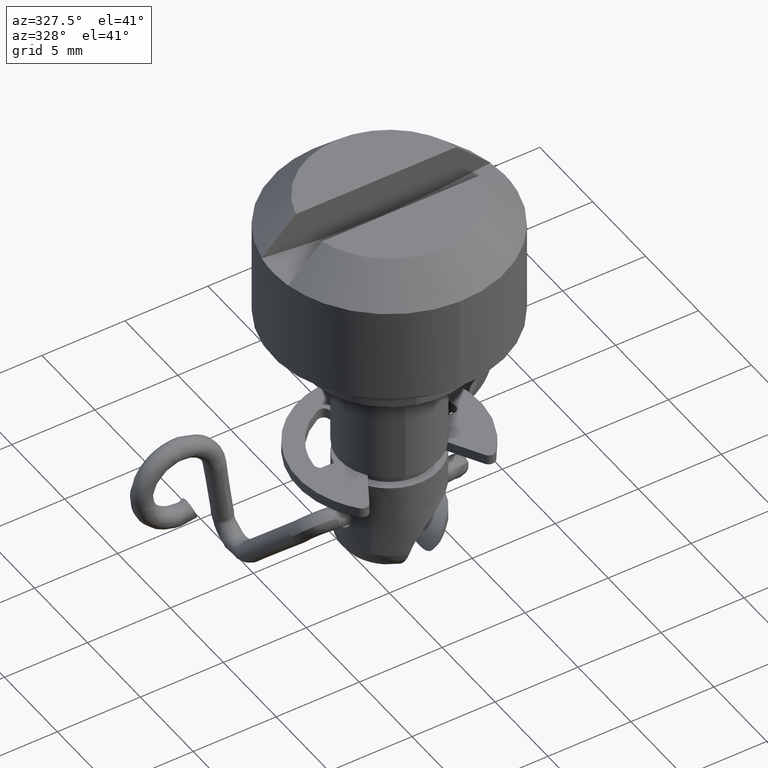
[diagram: clean part render]
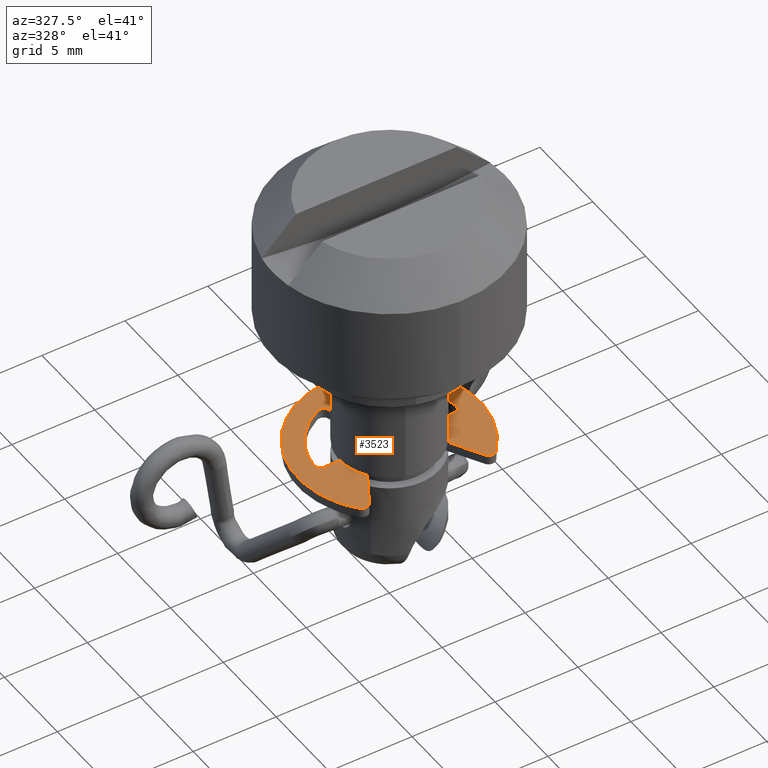
[diagram: same view with one face highlighted and labeled with its STEP entity id]
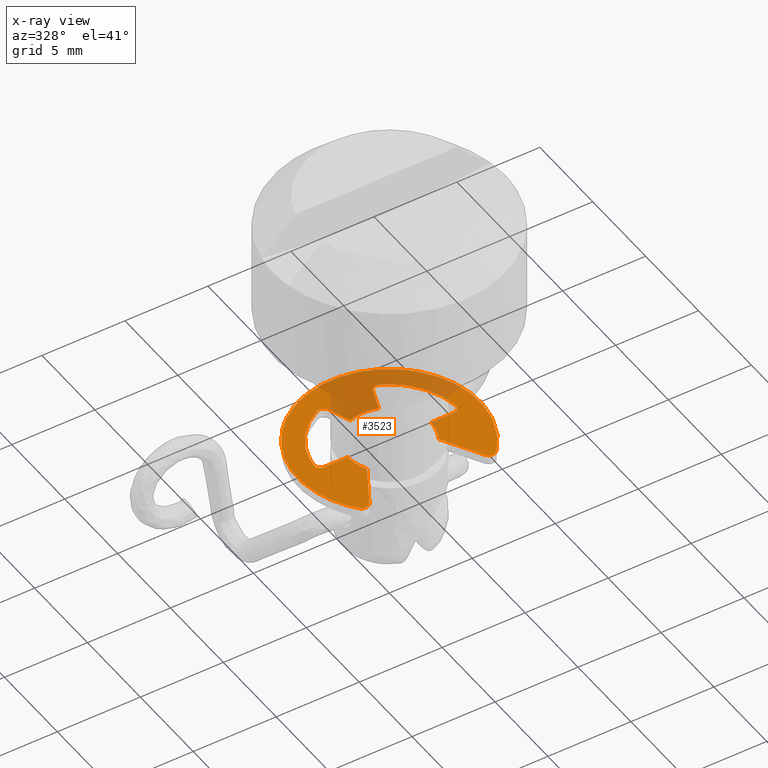
[diagram: x-ray of the same camera — body ghosted, the highlighted face saturated]
A machine part, auxiliary view. The second image highlights one B-rep face of the part: STEP entity #3523.
The next image is the same camera in x-ray: the body ghosted, the highlighted face saturated — about 32% of this face is hidden behind the body in this view.
In plain terms, the highlighted face is a freeform B-spline surface patch.
Its self-contained STEP definition (entity closure, byte-faithful):
#3286=CARTESIAN_POINT('',(-6.044257469474196,5.963260621037273,3.652428000000000));
#3287=CARTESIAN_POINT('',(6.044210363047867,5.963260621037273,3.652428000000000));
#3288=CARTESIAN_POINT('',(-6.044257469474196,-4.237748137348101,3.652428000000000));
#3289=CARTESIAN_POINT('',(6.044210363047867,-4.237748137348101,3.652428000000000));
#3290=B_SPLINE_SURFACE_WITH_KNOTS('',1,1,((#3286,#3288),(#3287,#3289)),.UNSPECIFIED.,.F.,.F.,.U.,(2,2),(2,2),(0.0,12.088467832522060),(0.0,10.201008758385370),.UNSPECIFIED.);
#3291=CARTESIAN_POINT('',(3.477317767674015,-3.574752000000000,3.652428000000000));
#3292=VERTEX_POINT('',#3291);
#3293=CARTESIAN_POINT('',(4.123627254631285,-3.639437684782785,3.652428000000000));
#3294=VERTEX_POINT('',#3293);
#3295=CARTESIAN_POINT('',(3.477317767674015,-3.574752000000000,3.652428000000000));
#3296=CARTESIAN_POINT('',(3.579847236059838,-3.752342773415963,3.652428000000000));
#3297=CARTESIAN_POINT('',(3.783890411053590,-3.772764371374957,3.652428000000000));
#3298=CARTESIAN_POINT('',(3.987933586047341,-3.793185969333950,3.652428000000000));
#3299=CARTESIAN_POINT('',(4.123627254631285,-3.639437684782785,3.652428000000000));
#3307=(BOUNDED_CURVE()B_SPLINE_CURVE(2,(#3295,#3296,#3297,#3298,#3299),.UNSPECIFIED.,.F.,.U.)B_SPLINE_CURVE_WITH_KNOTS((3,2,3),(0.0,0.500000000000000,1.0),.UNSPECIFIED.)CURVE()GEOMETRIC_REPRESENTATION_ITEM()RATIONAL_B_SPLINE_CURVE((1.0,0.889875466052382,1.0,0.889875466052382,1.0))REPRESENTATION_ITEM(''));
#3308=EDGE_CURVE('',#3292,#3294,#3307,.T.);
#3309=ORIENTED_EDGE('',*,*,#3308,.T.);
#3310=CARTESIAN_POINT('',(-4.123676641209775,-3.639434374102810,3.652428000000000));
#3311=VERTEX_POINT('',#3310);
#3312=CARTESIAN_POINT('',(4.123627254631282,-3.639437684782785,3.652428000000000));
#3313=CARTESIAN_POINT('',(7.614976579555210,0.316421871229850,3.652428000000001));
#3314=CARTESIAN_POINT('',(3.807478203361961,3.968996449637391,3.652428000000000));
#3315=CARTESIAN_POINT('',(-0.000020172831285,7.621571028044930,3.652428000000001));
#3316=CARTESIAN_POINT('',(-3.807521481498126,3.968999506494186,3.652428000000000));
#3317=CARTESIAN_POINT('',(-7.615022790164963,0.316427984943443,3.652428000000001));
#3318=CARTESIAN_POINT('',(-4.123676641209777,-3.639434374102808,3.652428000000000));
#3326=(BOUNDED_CURVE()B_SPLINE_CURVE(2,(#3312,#3313,#3314,#3315,#3316,#3317,#3318),.UNSPECIFIED.,.F.,.U.)B_SPLINE_CURVE_WITH_KNOTS((3,2,2,3),(0.0,0.333333333333333,0.666666666666667,1.0),.UNSPECIFIED.)CURVE()GEOMETRIC_REPRESENTATION_ITEM()RATIONAL_B_SPLINE_CURVE((1.0,0.721635996012020,1.0,0.721635996012020,1.0,0.721635996012020,1.0))REPRESENTATION_ITEM(''));
#3327=EDGE_CURVE('',#3294,#3311,#3326,.T.);
#3328=ORIENTED_EDGE('',*,*,#3327,.T.);
#3329=CARTESIAN_POINT('',(-3.477359252326595,-3.574755314391800,3.652428000000000));
#3330=VERTEX_POINT('',#3329);
#3331=CARTESIAN_POINT('',(-4.123676641209775,-3.639434374102810,3.652428000000000));
#3332=CARTESIAN_POINT('',(-3.987985202248109,-3.793186647075040,3.652428000000000));
#3333=CARTESIAN_POINT('',(-3.783938724790174,-3.772766973022722,3.652428000000000));
#3334=CARTESIAN_POINT('',(-3.579892247332238,-3.752347298970404,3.652428000000000));
#3335=CARTESIAN_POINT('',(-3.477359252326591,-3.574755314391803,3.652428000000000));
#3343=(BOUNDED_CURVE()B_SPLINE_CURVE(2,(#3331,#3332,#3333,#3334,#3335),.UNSPECIFIED.,.F.,.U.)B_SPLINE_CURVE_WITH_KNOTS((3,2,3),(0.0,0.500000000000000,1.0),.UNSPECIFIED.)CURVE()GEOMETRIC_REPRESENTATION_ITEM()RATIONAL_B_SPLINE_CURVE((1.0,0.889873946577357,1.0,0.889873946577357,1.0))REPRESENTATION_ITEM(''));
#3344=EDGE_CURVE('',#3311,#3330,#3343,.T.);
#3345=ORIENTED_EDGE('',*,*,#3344,.T.);
#3346=CARTESIAN_POINT('',(-2.150025890093035,-1.275739058946442,3.652428000000000));
#3347=VERTEX_POINT('',#3346);
#3348=CARTESIAN_POINT('',(-3.477359252326595,-3.574755314391800,3.652428000000000));
#3349=CARTESIAN_POINT('',(-2.150025890093035,-1.275739058946442,3.652428000000000));
#3350=QUASI_UNIFORM_CURVE('',1,(#3348,#3349),.UNSPECIFIED.,.F.,.U.);
#3351=EDGE_CURVE('',#3330,#3347,#3350,.T.);
#3352=ORIENTED_EDGE('',*,*,#3351,.T.);
#3353=CARTESIAN_POINT('',(-2.500023232325985,-0.000008455882209,3.652428000000000));
#3354=VERTEX_POINT('',#3353);
#3355=CARTESIAN_POINT('',(-2.500023232325987,-0.000008455882210,3.652428000000000));
#3356=CARTESIAN_POINT('',(-2.500023232325986,-0.685884732174944,3.652428000000001));
#3357=CARTESIAN_POINT('',(-2.150025890093034,-1.275739058946442,3.652428000000000));
#3365=(BOUNDED_CURVE()B_SPLINE_CURVE(2,(#3355,#3356,#3357),.UNSPECIFIED.,.F.,.U.)CURVE()GEOMETRIC_REPRESENTATION_ITEM()QUASI_UNIFORM_CURVE()RATIONAL_B_SPLINE_CURVE((1.0,0.964365351696860,1.0))REPRESENTATION_ITEM(''));
#3366=EDGE_CURVE('',#3354,#3347,#3365,.T.);
#3367=ORIENTED_EDGE('',*,*,#3366,.F.);
#3368=CARTESIAN_POINT('',(-3.999980347125290,0.018583541632836,3.652428000000000));
#3369=VERTEX_POINT('',#3368);
#3370=CARTESIAN_POINT('',(-2.500023232325985,-0.000008455882209,3.652428000000000));
#3371=CARTESIAN_POINT('',(-3.999980347125290,0.018583541632836,3.652428000000000));
#3372=QUASI_UNIFORM_CURVE('',1,(#3370,#3371),.UNSPECIFIED.,.F.,.U.);
#3373=EDGE_CURVE('',#3354,#3369,#3372,.T.);
#3374=ORIENTED_EDGE('',*,*,#3373,.T.);
#3375=CARTESIAN_POINT('',(-4.277346852082925,0.441019049779806,3.652428000000000));
#3376=VERTEX_POINT('',#3375);
#3377=CARTESIAN_POINT('',(-4.277346852082927,0.441019049779806,3.652428000000000));
#3378=CARTESIAN_POINT('',(-4.310776530283191,0.116793839846658,3.652427999999999));
#3379=CARTESIAN_POINT('',(-3.999980347125290,0.018583541632836,3.652428000000000));
#3387=(BOUNDED_CURVE()B_SPLINE_CURVE(2,(#3377,#3378,#3379),.UNSPECIFIED.,.F.,.U.)CURVE()GEOMETRIC_REPRESENTATION_ITEM()QUASI_UNIFORM_CURVE()RATIONAL_B_SPLINE_CURVE((1.0,0.775217775233390,1.0))REPRESENTATION_ITEM(''));
#3388=EDGE_CURVE('',#3376,#3369,#3387,.T.);
#3389=ORIENTED_EDGE('',*,*,#3388,.F.);
#3390=CARTESIAN_POINT('',(-1.877383980231175,3.868528999791115,3.652428000000000));
#3391=VERTEX_POINT('',#3390);
#3392=CARTESIAN_POINT('',(-1.877383980231176,3.868528999791118,3.652428000000000));
#3393=CARTESIAN_POINT('',(-4.031746318642191,2.823037214382127,3.652428000000001));
#3394=CARTESIAN_POINT('',(-4.277346852082925,0.441019049779806,3.652428000000000));
#3402=(BOUNDED_CURVE()B_SPLINE_CURVE(2,(#3392,#3393,#3394),.UNSPECIFIED.,.F.,.U.)CURVE()GEOMETRIC_REPRESENTATION_ITEM()QUASI_UNIFORM_CURVE()RATIONAL_B_SPLINE_CURVE((1.0,0.873660231040318,1.0))REPRESENTATION_ITEM(''));
#3403=EDGE_CURVE('',#3391,#3376,#3402,.T.);
#3404=ORIENTED_EDGE('',*,*,#3403,.F.);
#3405=CARTESIAN_POINT('',(-1.385555965341724,3.752372226991545,3.652428000000000));
#3406=VERTEX_POINT('',#3405);
#3407=CARTESIAN_POINT('',(-1.385555965341723,3.752372226991546,3.652428000000000));
#3408=CARTESIAN_POINT('',(-1.584143723559577,4.010838198621318,3.652428000000001));
#3409=CARTESIAN_POINT('',(-1.877383980231175,3.868528999791115,3.652428000000000));
#3417=(BOUNDED_CURVE()B_SPLINE_CURVE(2,(#3407,#3408,#3409),.UNSPECIFIED.,.F.,.U.)CURVE()GEOMETRIC_REPRESENTATION_ITEM()QUASI_UNIFORM_CURVE()RATIONAL_B_SPLINE_CURVE((1.0,0.775214534404795,1.0))REPRESENTATION_ITEM(''));
#3418=EDGE_CURVE('',#3406,#3391,#3417,.T.);
#3419=ORIENTED_EDGE('',*,*,#3418,.F.);
#3420=CARTESIAN_POINT('',(-0.865978061273184,2.345225484308630,3.652428000000000));
#3421=VERTEX_POINT('',#3420);
#3422=CARTESIAN_POINT('',(-1.385555965341724,3.752372226991545,3.652428000000000));
#3423=CARTESIAN_POINT('',(-0.865978061273184,2.345225484308630,3.652428000000000));
#3424=QUASI_UNIFORM_CURVE('',1,(#3422,#3423),.UNSPECIFIED.,.F.,.U.);
#3425=EDGE_CURVE('',#3406,#3421,#3424,.T.);
#3426=ORIENTED_EDGE('',*,*,#3425,.T.);
#3427=CARTESIAN_POINT('',(0.865932071625825,2.345225308917735,3.652428000000000));
#3428=VERTEX_POINT('',#3427);
#3429=CARTESIAN_POINT('',(0.865932071625825,2.345225308917736,3.652428000000000));
#3430=CARTESIAN_POINT('',(-0.000022962442978,2.664970984590121,3.652428000000000));
#3431=CARTESIAN_POINT('',(-0.865978061273181,2.345225484308627,3.652428000000000));
#3439=(BOUNDED_CURVE()B_SPLINE_CURVE(2,(#3429,#3430,#3431),.UNSPECIFIED.,.F.,.U.)CURVE()GEOMETRIC_REPRESENTATION_ITEM()QUASI_UNIFORM_CURVE()RATIONAL_B_SPLINE_CURVE((1.0,0.938093540998161,1.0))REPRESENTATION_ITEM(''));
#3440=EDGE_CURVE('',#3428,#3421,#3439,.T.);
#3441=ORIENTED_EDGE('',*,*,#3440,.F.);
#3442=CARTESIAN_POINT('',(1.385510416532180,3.752372117458735,3.652428000000000));
#3443=VERTEX_POINT('',#3442);
#3444=CARTESIAN_POINT('',(0.865932071625825,2.345225308917735,3.652428000000000));
#3445=CARTESIAN_POINT('',(1.385510416532180,3.752372117458735,3.652428000000000));
#3446=QUASI_UNIFORM_CURVE('',1,(#3444,#3445),.UNSPECIFIED.,.F.,.U.);
#3447=EDGE_CURVE('',#3428,#3443,#3446,.T.);
#3448=ORIENTED_EDGE('',*,*,#3447,.T.);
#3449=CARTESIAN_POINT('',(1.877336378752375,3.868529967698180,3.652428000000000));
#3450=VERTEX_POINT('',#3449);
#3451=CARTESIAN_POINT('',(1.877336378752375,3.868529967698181,3.652428000000000));
#3452=CARTESIAN_POINT('',(1.584096966815034,4.010836701680066,3.652428000000000));
#3453=CARTESIAN_POINT('',(1.385510416532183,3.752372117458733,3.652428000000000));
#3461=(BOUNDED_CURVE()B_SPLINE_CURVE(2,(#3451,#3452,#3453),.UNSPECIFIED.,.F.,.U.)CURVE()GEOMETRIC_REPRESENTATION_ITEM()QUASI_UNIFORM_CURVE()RATIONAL_B_SPLINE_CURVE((1.0,0.775216276993407,1.0))REPRESENTATION_ITEM(''));
#3462=EDGE_CURVE('',#3450,#3443,#3461,.T.);
#3463=ORIENTED_EDGE('',*,*,#3462,.F.);
#3464=CARTESIAN_POINT('',(4.277300375856590,0.441024660176709,3.652428000000000));
#3465=VERTEX_POINT('',#3464);
#3466=CARTESIAN_POINT('',(4.277300375856590,0.441024660176709,3.652428000000000));
#3467=CARTESIAN_POINT('',(4.031696467217811,2.823039752624467,3.652428000000000));
#3468=CARTESIAN_POINT('',(1.877336378752375,3.868529967698180,3.652428000000000));
#3476=(BOUNDED_CURVE()B_SPLINE_CURVE(2,(#3466,#3467,#3468),.UNSPECIFIED.,.F.,.U.)CURVE()GEOMETRIC_REPRESENTATION_ITEM()QUASI_UNIFORM_CURVE()RATIONAL_B_SPLINE_CURVE((1.0,0.873660465067620,1.0))REPRESENTATION_ITEM(''));
#3477=EDGE_CURVE('',#3465,#3450,#3476,.T.);
#3478=ORIENTED_EDGE('',*,*,#3477,.F.);
#3479=CARTESIAN_POINT('',(3.999933915757659,0.018583552150550,3.652428000000000));
#3480=VERTEX_POINT('',#3479);
#3481=CARTESIAN_POINT('',(3.999933915757659,0.018583552150551,3.652428000000000));
#3482=CARTESIAN_POINT('',(4.310734491050563,0.116795268091458,3.652428000000000));
#3483=CARTESIAN_POINT('',(4.277300375856590,0.441024660176709,3.652428000000000));
#3491=(BOUNDED_CURVE()B_SPLINE_CURVE(2,(#3481,#3482,#3483),.UNSPECIFIED.,.F.,.U.)CURVE()GEOMETRIC_REPRESENTATION_ITEM()QUASI_UNIFORM_CURVE()RATIONAL_B_SPLINE_CURVE((1.0,0.775213395140129,1.0))REPRESENTATION_ITEM(''));
#3492=EDGE_CURVE('',#3480,#3465,#3491,.T.);
#3493=ORIENTED_EDGE('',*,*,#3492,.F.);
#3494=CARTESIAN_POINT('',(2.499976767659710,0.0,3.652428000000000));
#3495=VERTEX_POINT('',#3494);
#3496=CARTESIAN_POINT('',(3.999933915757659,0.018583552150550,3.652428000000000));
#3497=CARTESIAN_POINT('',(2.499976767659710,0.0,3.652428000000000));
#3498=QUASI_UNIFORM_CURVE('',1,(#3496,#3497),.UNSPECIFIED.,.F.,.U.);
#3499=EDGE_CURVE('',#3480,#3495,#3498,.T.);
#3500=ORIENTED_EDGE('',*,*,#3499,.T.);
#3501=CARTESIAN_POINT('',(2.149979408861375,-1.275739086888370,3.652428000000000));
#3502=VERTEX_POINT('',#3501);
#3503=CARTESIAN_POINT('',(2.149979408861374,-1.275739086888369,3.652428000000000));
#3504=CARTESIAN_POINT('',(2.499979087550750,-0.685880839929610,3.652428000000001));
#3505=CARTESIAN_POINT('',(2.499976767659713,-9.884080E-016,3.652428000000000));
#3513=(BOUNDED_CURVE()B_SPLINE_CURVE(2,(#3503,#3504,#3505),.UNSPECIFIED.,.F.,.U.)CURVE()GEOMETRIC_REPRESENTATION_ITEM()QUASI_UNIFORM_CURVE()RATIONAL_B_SPLINE_CURVE((1.0,0.964364902534708,1.0))REPRESENTATION_ITEM(''));
#3514=EDGE_CURVE('',#3502,#3495,#3513,.T.);
#3515=ORIENTED_EDGE('',*,*,#3514,.F.);
#3516=CARTESIAN_POINT('',(2.149979408861375,-1.275739086888370,3.652428000000000));
#3517=CARTESIAN_POINT('',(3.477317767674015,-3.574752000000000,3.652428000000000));
#3518=QUASI_UNIFORM_CURVE('',1,(#3516,#3517),.UNSPECIFIED.,.F.,.U.);
#3519=EDGE_CURVE('',#3502,#3292,#3518,.T.);
#3520=ORIENTED_EDGE('',*,*,#3519,.T.);
#3521=EDGE_LOOP('',(#3309,#3328,#3345,#3352,#3367,#3374,#3389,#3404,#3419,#3426,#3441,#3448,#3463,#3478,#3493,#3500,#3515,#3520));
#3522=FACE_OUTER_BOUND('',#3521,.T.);
#3523=ADVANCED_FACE('',(#3522),#3290,.F.);